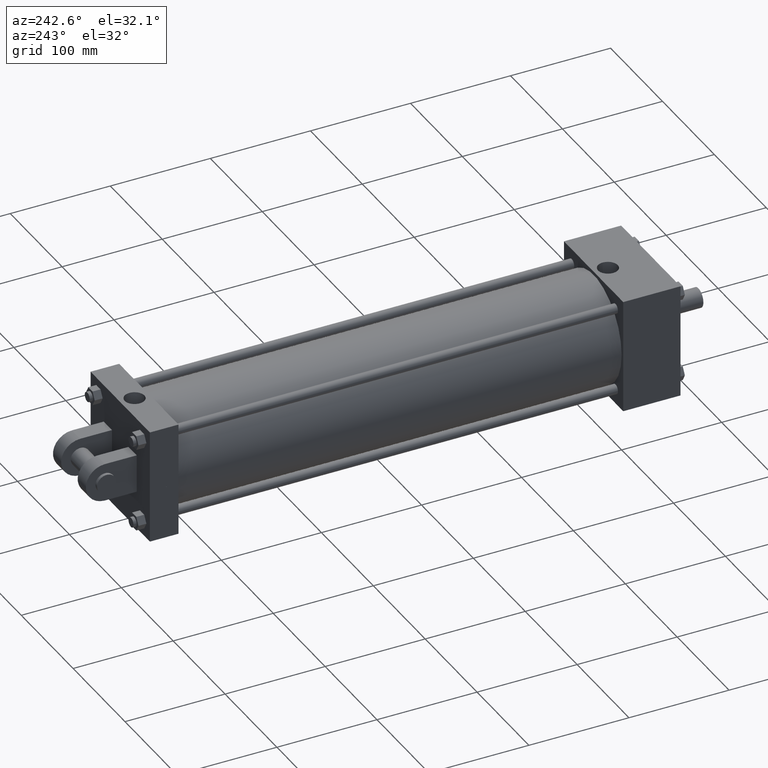
[diagram: clean part render]
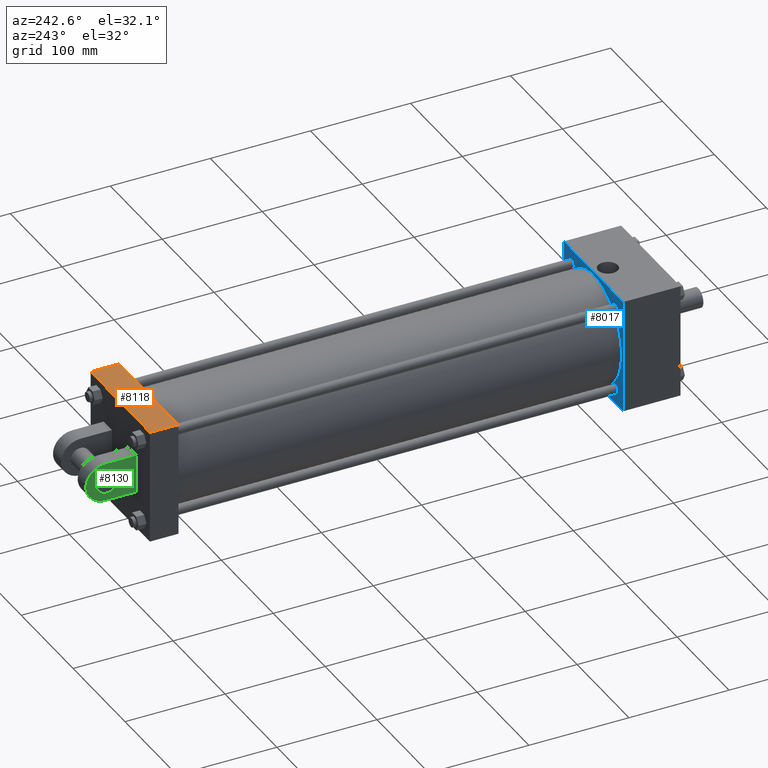
[diagram: same view with three faces highlighted in distinct colors, each labeled with its STEP entity id]
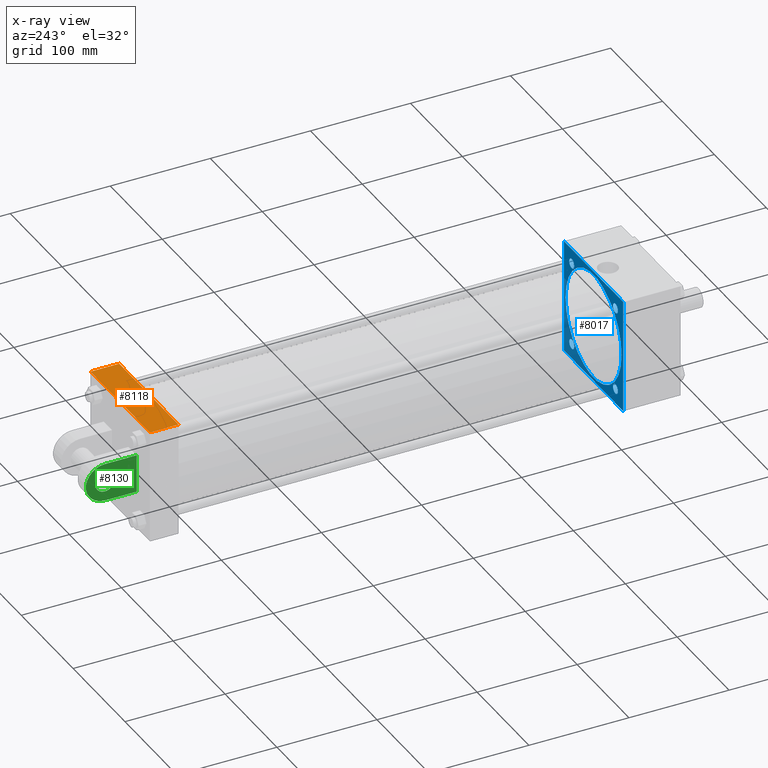
[diagram: x-ray of the same camera — body ghosted, the three highlighted faces saturated]
A machine part, auxiliary view with three faces highlighted in distinct colors.
The next image is the same camera in x-ray (body ghosted, the three faces saturated) — at least one of them is partly hidden behind the body in this view.
Their STEP definitions:

[orange] entity #8118 — the highlighted planar face has unit normal (0, 0, 1).
#5786=EDGE_CURVE('',#5792,#5792,#5787,.T.);
#5787=CIRCLE('',#5788,9.885680000E+000);
#5788=AXIS2_PLACEMENT_3D('',#5789,#5790,#5791);
#5789=CARTESIAN_POINT('',(0.000000000E+000,5.349875000E+002,5.715000000E+001));
#5790=DIRECTION('',(0.0E+000,0.0E+000,-1.0E+000));
#5791=DIRECTION('',(-1.0E+000,0.0E+000,0.0E+000));
#5792=VERTEX_POINT('',#5793);
#5793=CARTESIAN_POINT('',(-9.885680000E+000,5.349875000E+002,5.715000000E+001));
#6058=VERTEX_POINT('',#6060);
#6060=CARTESIAN_POINT('',(5.715000000E+001,5.492750000E+002,5.715000000E+001));
#6073=VERTEX_POINT('',#6074);
#6074=CARTESIAN_POINT('',(-5.715000000E+001,5.492750000E+002,5.715000000E+001));
#6075=EDGE_CURVE('',#6058,#6073,#6076,.T.);
#6076=LINE('',#6077,#6078);
#6077=CARTESIAN_POINT('',(5.715000000E+001,5.492750000E+002,5.715000000E+001));
#6078=VECTOR('',#6079,1.0E+000);
#6079=DIRECTION('',(-1.0E+000,0.0E+000,0.0E+000));
#6099=EDGE_CURVE('',#6073,#6202,#6100,.T.);
#6100=LINE('',#6101,#6102);
#6101=CARTESIAN_POINT('',(-5.715000000E+001,5.492750000E+002,5.715000000E+001));
#6102=VECTOR('',#6103,1.0E+000);
#6103=DIRECTION('',(0.0E+000,-1.0E+000,0.0E+000));
#6109=FACE_OUTER_BOUND('',#6111,.T.);
#6110=FACE_BOUND('',#6112,.T.);
#6111=EDGE_LOOP('',(#6113));
#6112=EDGE_LOOP('',(#6114,#6115,#6116,#6117));
#6113=ORIENTED_EDGE('',*,*,#5786,.T.);
#6114=ORIENTED_EDGE('',*,*,#6099,.T.);
#6115=ORIENTED_EDGE('',*,*,#6197,.F.);
#6116=ORIENTED_EDGE('',*,*,#6118,.F.);
#6117=ORIENTED_EDGE('',*,*,#6075,.T.);
#6118=EDGE_CURVE('',#6058,#6195,#6119,.T.);
#6119=LINE('',#6120,#6121);
#6120=CARTESIAN_POINT('',(5.715000000E+001,5.492750000E+002,5.715000000E+001));
#6121=VECTOR('',#6122,1.0E+000);
#6122=DIRECTION('',(0.0E+000,-1.0E+000,0.0E+000));
#6123=PLANE('',#6124);
#6124=AXIS2_PLACEMENT_3D('',#6125,#6126,#6127);
#6125=CARTESIAN_POINT('',(5.715000000E+001,5.492750000E+002,5.715000000E+001));
#6126=DIRECTION('',(0.0E+000,0.0E+000,1.0E+000));
#6127=DIRECTION('',(1.0E+000,0.0E+000,0.0E+000));
#6195=VERTEX_POINT('',#6196);
#6196=CARTESIAN_POINT('',(5.715000000E+001,5.207000000E+002,5.715000000E+001));
#6197=EDGE_CURVE('',#6195,#6202,#6198,.T.);
#6198=LINE('',#6199,#6200);
#6199=CARTESIAN_POINT('',(5.715000000E+001,5.207000000E+002,5.715000000E+001));
#6200=VECTOR('',#6201,1.0E+000);
#6201=DIRECTION('',(-1.0E+000,0.0E+000,0.0E+000));
#6202=VERTEX_POINT('',#6203);
#6203=CARTESIAN_POINT('',(-5.715000000E+001,5.207000000E+002,5.715000000E+001));
#8118=ADVANCED_FACE('',(#6109,#6110),#6123,.T.);

[blue] entity #8017 — the highlighted planar face has unit normal (0, 1, 0).
#455=FACE_OUTER_BOUND('',#461,.T.);
#456=FACE_BOUND('',#462,.T.);
#457=FACE_BOUND('',#463,.T.);
#458=FACE_BOUND('',#464,.T.);
#459=FACE_BOUND('',#465,.T.);
#460=FACE_BOUND('',#466,.T.);
#461=EDGE_LOOP('',(#467));
#462=EDGE_LOOP('',(#476,#477,#478,#479));
#463=EDGE_LOOP('',(#508));
#464=EDGE_LOOP('',(#517));
#465=EDGE_LOOP('',(#526));
#466=EDGE_LOOP('',(#535));
#467=ORIENTED_EDGE('',*,*,#468,.F.);
#468=EDGE_CURVE('',#474,#474,#469,.T.);
#469=CIRCLE('',#470,5.397500000E+001);
#470=AXIS2_PLACEMENT_3D('',#471,#472,#473);
#471=CARTESIAN_POINT('',(0.000000000E+000,7.620000000E+001,0.000000000E+000));
#472=DIRECTION('',(0.0E+000,1.0E+000,0.0E+000));
#473=DIRECTION('',(1.0E+000,0.0E+000,0.0E+000));
#474=VERTEX_POINT('',#475);
#475=CARTESIAN_POINT('',(5.397500000E+001,7.620000000E+001,0.000000000E+000));
#476=ORIENTED_EDGE('',*,*,#480,.F.);
#477=ORIENTED_EDGE('',*,*,#489,.F.);
#478=ORIENTED_EDGE('',*,*,#496,.F.);
#479=ORIENTED_EDGE('',*,*,#503,.F.);
#480=EDGE_CURVE('',#485,#486,#481,.T.);
#481=LINE('',#482,#483);
#482=CARTESIAN_POINT('',(-5.715000000E+001,7.620000000E+001,-5.715000000E+001));
#483=VECTOR('',#484,1.0E+000);
#484=DIRECTION('',(1.0E+000,0.0E+000,0.0E+000));
#485=VERTEX_POINT('',#487);
#486=VERTEX_POINT('',#488);
#487=CARTESIAN_POINT('',(-5.715000000E+001,7.620000000E+001,-5.715000000E+001));
#488=CARTESIAN_POINT('',(5.715000000E+001,7.620000000E+001,-5.715000000E+001));
#489=EDGE_CURVE('',#494,#485,#490,.T.);
#490=LINE('',#491,#492);
#491=CARTESIAN_POINT('',(-5.715000000E+001,7.620000000E+001,5.715000000E+001));
#492=VECTOR('',#493,1.0E+000);
#493=DIRECTION('',(0.0E+000,0.0E+000,-1.0E+000));
#494=VERTEX_POINT('',#495);
#495=CARTESIAN_POINT('',(-5.715000000E+001,7.620000000E+001,5.715000000E+001));
#496=EDGE_CURVE('',#501,#494,#497,.T.);
#497=LINE('',#498,#499);
#498=CARTESIAN_POINT('',(5.715000000E+001,7.620000000E+001,5.715000000E+001));
#499=VECTOR('',#500,1.0E+000);
#500=DIRECTION('',(-1.0E+000,0.0E+000,0.0E+000));
#501=VERTEX_POINT('',#502);
#502=CARTESIAN_POINT('',(5.715000000E+001,7.620000000E+001,5.715000000E+001));
#503=EDGE_CURVE('',#486,#501,#504,.T.);
#504=LINE('',#505,#506);
#505=CARTESIAN_POINT('',(5.715000000E+001,7.620000000E+001,-5.715000000E+001));
#506=VECTOR('',#507,1.0E+000);
#507=DIRECTION('',(0.0E+000,0.0E+000,1.0E+000));
#508=ORIENTED_EDGE('',*,*,#509,.F.);
#509=EDGE_CURVE('',#515,#515,#510,.T.);
#510=CIRCLE('',#511,4.762500000E+000);
#511=AXIS2_PLACEMENT_3D('',#512,#513,#514);
#512=CARTESIAN_POINT('',(-4.216400000E+001,7.620000000E+001,4.216400000E+001));
#513=DIRECTION('',(0.0E+000,1.0E+000,0.0E+000));
#514=DIRECTION('',(1.0E+000,0.0E+000,0.0E+000));
#515=VERTEX_POINT('',#516);
#516=CARTESIAN_POINT('',(-3.740150000E+001,7.620000000E+001,4.216400000E+001));
#517=ORIENTED_EDGE('',*,*,#518,.F.);
#518=EDGE_CURVE('',#524,#524,#519,.T.);
#519=CIRCLE('',#520,4.762500000E+000);
#520=AXIS2_PLACEMENT_3D('',#521,#522,#523);
#521=CARTESIAN_POINT('',(-4.216400000E+001,7.620000000E+001,-4.216400000E+001));
#522=DIRECTION('',(0.0E+000,1.0E+000,0.0E+000));
#523=DIRECTION('',(1.0E+000,0.0E+000,0.0E+000));
#524=VERTEX_POINT('',#525);
#525=CARTESIAN_POINT('',(-3.740150000E+001,7.620000000E+001,-4.216400000E+001));
#526=ORIENTED_EDGE('',*,*,#527,.F.);
#527=EDGE_CURVE('',#533,#533,#528,.T.);
#528=CIRCLE('',#529,4.762500000E+000);
#529=AXIS2_PLACEMENT_3D('',#530,#531,#532);
#530=CARTESIAN_POINT('',(4.216400000E+001,7.620000000E+001,-4.216400000E+001));
#531=DIRECTION('',(0.0E+000,1.0E+000,0.0E+000));
#532=DIRECTION('',(1.0E+000,0.0E+000,0.0E+000));
#533=VERTEX_POINT('',#534);
#534=CARTESIAN_POINT('',(4.692650000E+001,7.620000000E+001,-4.216400000E+001));
#535=ORIENTED_EDGE('',*,*,#536,.T.);
#536=EDGE_CURVE('',#542,#542,#537,.T.);
#537=CIRCLE('',#538,4.762500000E+000);
#538=AXIS2_PLACEMENT_3D('',#539,#540,#541);
#539=CARTESIAN_POINT('',(4.216400000E+001,7.620000000E+001,4.216400000E+001));
#540=DIRECTION('',(0.0E+000,-1.0E+000,0.0E+000));
#541=DIRECTION('',(-1.0E+000,0.0E+000,0.0E+000));
#542=VERTEX_POINT('',#543);
#543=CARTESIAN_POINT('',(3.740150000E+001,7.620000000E+001,4.216400000E+001));
#544=PLANE('',#545);
#545=AXIS2_PLACEMENT_3D('',#546,#547,#548);
#546=CARTESIAN_POINT('',(-5.715000000E+001,7.620000000E+001,-5.715000000E+001));
#547=DIRECTION('',(0.0E+000,1.0E+000,0.0E+000));
#548=DIRECTION('',(0.0E+000,0.0E+000,1.0E+000));
#8017=ADVANCED_FACE('',(#455,#456,#457,#458,#459,#460),#544,.T.);

[green] entity #8130 — the highlighted planar face has unit normal (-1, 0, 0).
#5592=EDGE_CURVE('',#5598,#5598,#5593,.T.);
#5593=CIRCLE('',#5594,9.525000000E+000);
#5594=AXIS2_PLACEMENT_3D('',#5595,#5596,#5597);
#5595=CARTESIAN_POINT('',(-3.175000000E+001,5.810250000E+002,0.000000000E+000));
#5596=DIRECTION('',(-1.0E+000,0.0E+000,0.0E+000));
#5597=DIRECTION('',(0.0E+000,-1.0E+000,0.0E+000));
#5598=VERTEX_POINT('',#5599);
#5599=CARTESIAN_POINT('',(-3.175000000E+001,5.715000000E+002,0.000000000E+000));
#5936=FACE_OUTER_BOUND('',#5938,.T.);
#5937=FACE_BOUND('',#5939,.T.);
#5938=EDGE_LOOP('',(#5940));
#5939=EDGE_LOOP('',(#5941,#5942,#5943,#5944));
#5940=ORIENTED_EDGE('',*,*,#5592,.F.);
#5941=ORIENTED_EDGE('',*,*,#5945,.T.);
#5942=ORIENTED_EDGE('',*,*,#5954,.T.);
#5943=ORIENTED_EDGE('',*,*,#5962,.T.);
#5944=ORIENTED_EDGE('',*,*,#5969,.T.);
#5945=EDGE_CURVE('',#5950,#5951,#5946,.T.);
#5946=LINE('',#5947,#5948);
#5947=CARTESIAN_POINT('',(-3.175000000E+001,5.810250000E+002,1.905000000E+001));
#5948=VECTOR('',#5949,1.0E+000);
#5949=DIRECTION('',(0.0E+000,1.0E+000,0.0E+000));
#5950=VERTEX_POINT('',#5952);
#5951=VERTEX_POINT('',#5953);
#5952=CARTESIAN_POINT('',(-3.175000000E+001,5.492750000E+002,1.905000000E+001));
#5953=CARTESIAN_POINT('',(-3.175000000E+001,5.810250000E+002,1.905000000E+001));
#5954=EDGE_CURVE('',#5951,#5960,#5955,.T.);
#5955=CIRCLE('',#5956,1.905000000E+001);
#5956=AXIS2_PLACEMENT_3D('',#5957,#5958,#5959);
#5957=CARTESIAN_POINT('',(-3.175000000E+001,5.810250000E+002,0.000000000E+000));
#5958=DIRECTION('',(-1.0E+000,0.0E+000,0.0E+000));
#5959=DIRECTION('',(0.0E+000,-1.0E+000,0.0E+000));
#5960=VERTEX_POINT('',#5961);
#5961=CARTESIAN_POINT('',(-3.175000000E+001,5.810250000E+002,-1.905000000E+001));
#5962=EDGE_CURVE('',#5960,#5967,#5963,.T.);
#5963=LINE('',#5964,#5965);
#5964=CARTESIAN_POINT('',(-3.175000000E+001,5.810250000E+002,-1.905000000E+001));
#5965=VECTOR('',#5966,1.0E+000);
#5966=DIRECTION('',(0.0E+000,-1.0E+000,0.0E+000));
#5967=VERTEX_POINT('',#5968);
#5968=CARTESIAN_POINT('',(-3.175000000E+001,5.492750000E+002,-1.905000000E+001));
#5969=EDGE_CURVE('',#5967,#5950,#5970,.T.);
#5970=LINE('',#5971,#5972);
#5971=CARTESIAN_POINT('',(-3.175000000E+001,5.492750000E+002,-1.905000000E+001));
#5972=VECTOR('',#5973,1.0E+000);
#5973=DIRECTION('',(0.0E+000,0.0E+000,1.0E+000));
#5974=PLANE('',#5975);
#5975=AXIS2_PLACEMENT_3D('',#5976,#5977,#5978);
#5976=CARTESIAN_POINT('',(-3.175000000E+001,5.810250000E+002,0.000000000E+000));
#5977=DIRECTION('',(-1.0E+000,0.0E+000,0.0E+000));
#5978=DIRECTION('',(0.0E+000,-1.0E+000,0.0E+000));
#8130=ADVANCED_FACE('',(#5936,#5937),#5974,.T.);